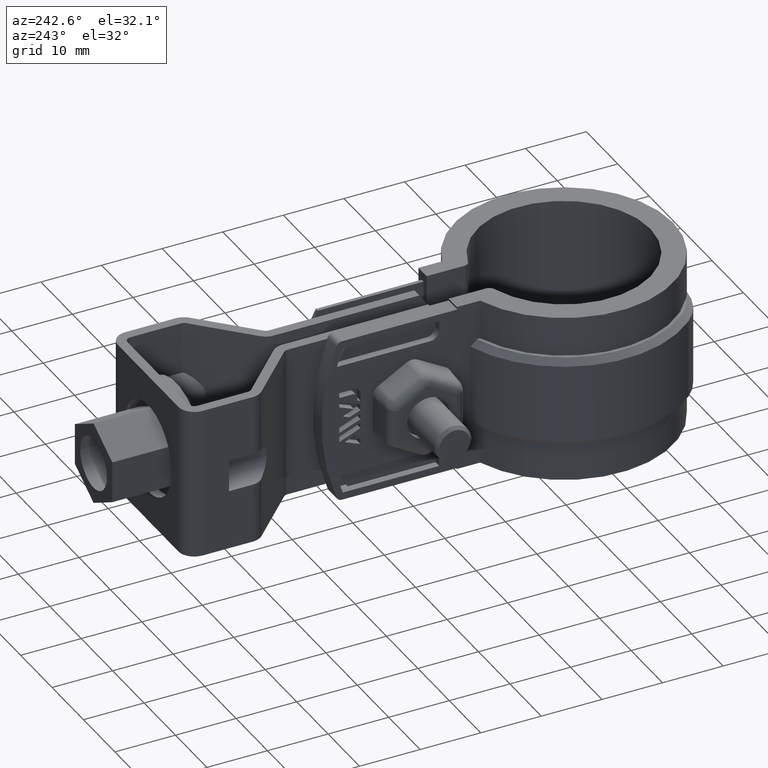
[diagram: clean part render]
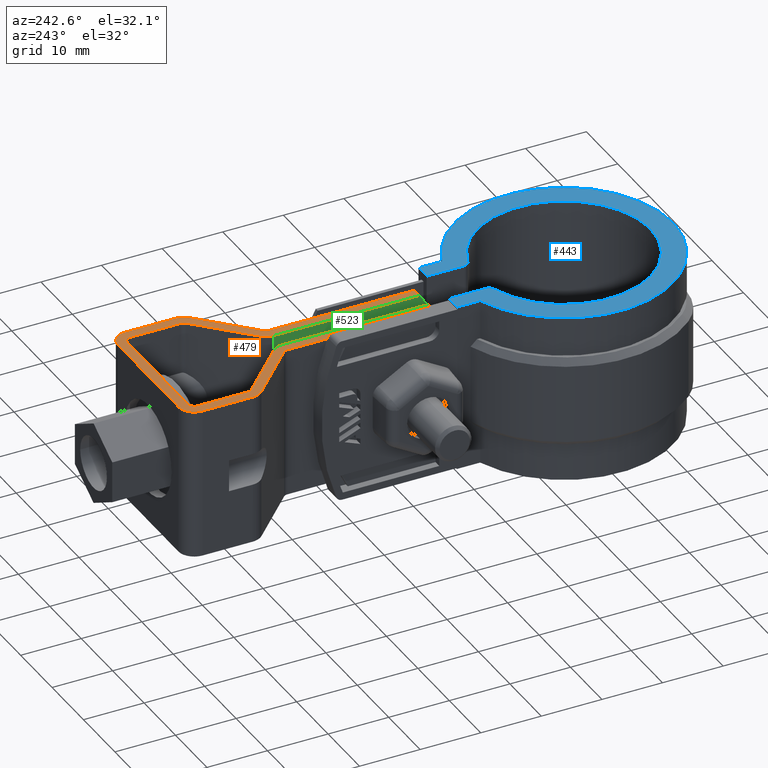
[diagram: same view with three faces highlighted in distinct colors, each labeled with its STEP entity id]
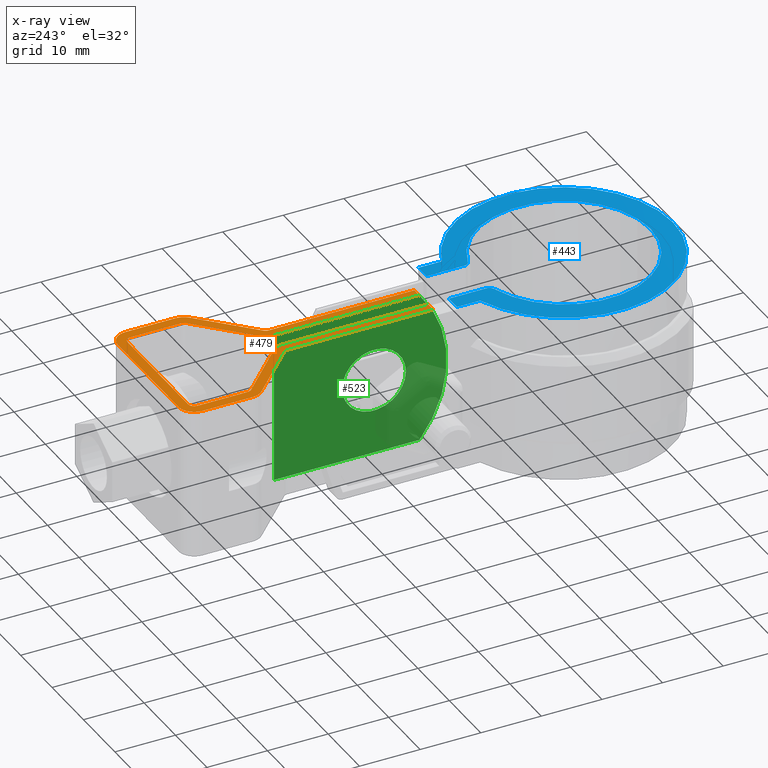
[diagram: x-ray of the same camera — body ghosted, the three highlighted faces saturated]
A machine part, auxiliary view with three faces highlighted in distinct colors.
The next image is the same camera in x-ray (body ghosted, the three faces saturated) — at least one of them is partly hidden behind the body in this view.
Their STEP definitions:

[orange] entity #479 — the highlighted planar face has unit normal (0, 0, -1).
#479 = ADVANCED_FACE( '', ( #929 ), #930, .F. );
#929 = FACE_OUTER_BOUND( '', #2066, .T. );
#930 = PLANE( '', #2067 );
#2066 = EDGE_LOOP( '', ( #4711, #4712, #4713, #4714, #4715, #4716, #4717, #4718, #4719, #4720, #4721, #4722, #4723, #4724, #4725, #4726, #4727, #4728, #4729, #4730, #4731, #4732, #4733, #4734, #4735, #4736, #4737, #4738 ) );
#2067 = AXIS2_PLACEMENT_3D( '', #4739, #4740, #4741 );
#4711 = ORIENTED_EDGE( '', *, *, #6796, .T. );
#4712 = ORIENTED_EDGE( '', *, *, #6797, .T. );
#4713 = ORIENTED_EDGE( '', *, *, #6798, .F. );
#4714 = ORIENTED_EDGE( '', *, *, #6799, .F. );
#4715 = ORIENTED_EDGE( '', *, *, #6800, .F. );
#4716 = ORIENTED_EDGE( '', *, *, #6801, .F. );
#4717 = ORIENTED_EDGE( '', *, *, #6802, .F. );
#4718 = ORIENTED_EDGE( '', *, *, #6803, .T. );
#4719 = ORIENTED_EDGE( '', *, *, #6804, .T. );
#4720 = ORIENTED_EDGE( '', *, *, #6805, .T. );
#4721 = ORIENTED_EDGE( '', *, *, #6806, .T. );
#4722 = ORIENTED_EDGE( '', *, *, #6807, .F. );
#4723 = ORIENTED_EDGE( '', *, *, #6808, .F. );
#4724 = ORIENTED_EDGE( '', *, *, #6809, .T. );
#4725 = ORIENTED_EDGE( '', *, *, #6810, .F. );
#4726 = ORIENTED_EDGE( '', *, *, #6811, .F. );
#4727 = ORIENTED_EDGE( '', *, *, #6812, .T. );
#4728 = ORIENTED_EDGE( '', *, *, #6813, .T. );
#4729 = ORIENTED_EDGE( '', *, *, #6814, .T. );
#4730 = ORIENTED_EDGE( '', *, *, #6815, .T. );
#4731 = ORIENTED_EDGE( '', *, *, #6816, .F. );
#4732 = ORIENTED_EDGE( '', *, *, #6817, .F. );
#4733 = ORIENTED_EDGE( '', *, *, #6818, .F. );
#4734 = ORIENTED_EDGE( '', *, *, #6819, .F. );
#4735 = ORIENTED_EDGE( '', *, *, #6820, .F. );
#4736 = ORIENTED_EDGE( '', *, *, #6821, .T. );
#4737 = ORIENTED_EDGE( '', *, *, #6822, .T. );
#4738 = ORIENTED_EDGE( '', *, *, #6823, .F. );
#4739 = CARTESIAN_POINT( '', ( -9.64999988717899, 66.0019465841352, 1.77277498236705E-008 ) );
#4740 = DIRECTION( '', ( 3.82133362428794E-011, 1.31468003150562E-010, -1.00000000000000 ) );
#4741 = DIRECTION( '', ( 7.94778667583653E-010, 1.00000000000000, 1.31468003180933E-010 ) );
#6796 = EDGE_CURVE( '', #7933, #7934, #7935, .T. );
#6797 = EDGE_CURVE( '', #7934, #7936, #7937, .F. );
#6798 = EDGE_CURVE( '', #7938, #7936, #7939, .T. );
#6799 = EDGE_CURVE( '', #7940, #7938, #7941, .T. );
#6800 = EDGE_CURVE( '', #7942, #7940, #7943, .T. );
#6801 = EDGE_CURVE( '', #7944, #7942, #7945, .T. );
#6802 = EDGE_CURVE( '', #7946, #7944, #7947, .T. );
#6803 = EDGE_CURVE( '', #7946, #7948, #7949, .T. );
#6804 = EDGE_CURVE( '', #7948, #7950, #7951, .T. );
#6805 = EDGE_CURVE( '', #7950, #7952, #7953, .T. );
#6806 = EDGE_CURVE( '', #7952, #7954, #7955, .T. );
#6807 = EDGE_CURVE( '', #7956, #7954, #7957, .F. );
#6808 = EDGE_CURVE( '', #7958, #7956, #7959, .T. );
#6809 = EDGE_CURVE( '', #7958, #7960, #7961, .F. );
#6810 = EDGE_CURVE( '', #7962, #7960, #7963, .T. );
#6811 = EDGE_CURVE( '', #7964, #7962, #7965, .T. );
#6812 = EDGE_CURVE( '', #7964, #7966, #7967, .T. );
#6813 = EDGE_CURVE( '', #7966, #7968, #7969, .T. );
#6814 = EDGE_CURVE( '', #7968, #7970, #7971, .T. );
#6815 = EDGE_CURVE( '', #7970, #7972, #7973, .T. );
#6816 = EDGE_CURVE( '', #7974, #7972, #7975, .T. );
#6817 = EDGE_CURVE( '', #7976, #7974, #7977, .T. );
#6818 = EDGE_CURVE( '', #7978, #7976, #7979, .T. );
#6819 = EDGE_CURVE( '', #7980, #7978, #7981, .T. );
#6820 = EDGE_CURVE( '', #7982, #7980, #7983, .T. );
#6821 = EDGE_CURVE( '', #7982, #7984, #7985, .T. );
#6822 = EDGE_CURVE( '', #7984, #7986, #7987, .T. );
#6823 = EDGE_CURVE( '', #7933, #7986, #7988, .F. );
#7933 = VERTEX_POINT( '', #10969 );
#7934 = VERTEX_POINT( '', #10970 );
#7935 = LINE( '', #10971, #10972 );
#7936 = VERTEX_POINT( '', #10973 );
#7937 = CIRCLE( '', #10974, 2.60000000000000 );
#7938 = VERTEX_POINT( '', #10975 );
#7939 = LINE( '', #10976, #10977 );
#7940 = VERTEX_POINT( '', #10978 );
#7941 = CIRCLE( '', #10979, 1.00000000000000 );
#7942 = VERTEX_POINT( '', #10980 );
#7943 = LINE( '', #10981, #10982 );
#7944 = VERTEX_POINT( '', #10983 );
#7945 = CIRCLE( '', #10984, 1.00000000000000 );
#7946 = VERTEX_POINT( '', #10985 );
#7947 = LINE( '', #10986, #10987 );
#7948 = VERTEX_POINT( '', #10988 );
#7949 = CIRCLE( '', #10989, 1.00000000000000 );
#7950 = VERTEX_POINT( '', #10990 );
#7951 = LINE( '', #10991, #10992 );
#7952 = VERTEX_POINT( '', #10993 );
#7953 = CIRCLE( '', #10994, 0.999999999999999 );
#7954 = VERTEX_POINT( '', #10995 );
#7955 = LINE( '', #10996, #10997 );
#7956 = VERTEX_POINT( '', #10998 );
#7957 = CIRCLE( '', #10999, 2.59999999999999 );
#7958 = VERTEX_POINT( '', #11000 );
#7959 = LINE( '', #11001, #11002 );
#7960 = VERTEX_POINT( '', #11003 );
#7961 = LINE( '', #11004, #11005 );
#7962 = VERTEX_POINT( '', #11006 );
#7963 = LINE( '', #11007, #11008 );
#7964 = VERTEX_POINT( '', #11009 );
#7965 = CIRCLE( '', #11010, 0.999999999999998 );
#7966 = VERTEX_POINT( '', #11011 );
#7967 = LINE( '', #11012, #11013 );
#7968 = VERTEX_POINT( '', #11014 );
#7969 = CIRCLE( '', #11015, 2.59999999999999 );
#7970 = VERTEX_POINT( '', #11016 );
#7971 = LINE( '', #11017, #11018 );
#7972 = VERTEX_POINT( '', #11019 );
#7973 = CIRCLE( '', #11020, 2.59999999999999 );
#7974 = VERTEX_POINT( '', #11021 );
#7975 = LINE( '', #11022, #11023 );
#7976 = VERTEX_POINT( '', #11024 );
#7977 = CIRCLE( '', #11025, 2.59999999999999 );
#7978 = VERTEX_POINT( '', #11026 );
#7979 = LINE( '', #11027, #11028 );
#7980 = VERTEX_POINT( '', #11029 );
#7981 = CIRCLE( '', #11030, 2.59999999999999 );
#7982 = VERTEX_POINT( '', #11031 );
#7983 = LINE( '', #11032, #11033 );
#7984 = VERTEX_POINT( '', #11034 );
#7985 = CIRCLE( '', #11035, 1.00000000000000 );
#7986 = VERTEX_POINT( '', #11036 );
#7987 = LINE( '', #11037, #11038 );
#7988 = LINE( '', #11039, #11040 );
#10969 = CARTESIAN_POINT( '', ( -1.39999992127499, 23.1019466106664, 1.24030230530536E-008 ) );
#10970 = CARTESIAN_POINT( '', ( -1.39999990215727, 47.1560929518745, 1.55653684386081E-008 ) );
#10971 = CARTESIAN_POINT( '', ( -1.39999992485149, 18.6019465775784, 1.18114129588065E-008 ) );
#10972 = VECTOR( '', #12849, 1000.00000000000 );
#10973 = CARTESIAN_POINT( '', ( -2.18435792829886, 49.0171260602460, 1.57800716937828E-008 ) );
#10974 = AXIS2_PLACEMENT_3D( '', #12850, #12851, #12852 );
#10975 = CARTESIAN_POINT( '', ( -10.3483237298784, 56.9819703890617, 1.65152336251140E-008 ) );
#10976 = CARTESIAN_POINT( '', ( -10.3483237298784, 56.9819703890617, 1.65152336251140E-008 ) );
#10977 = VECTOR( '', #12853, 1000.00000000000 );
#10978 = CARTESIAN_POINT( '', ( -10.6499998937790, 57.6977523538200, 1.65978064625705E-008 ) );
#10979 = AXIS2_PLACEMENT_3D( '', #12854, #12855, #12856 );
#10980 = CARTESIAN_POINT( '', ( -10.6499998871790, 66.0019465849300, 1.76895442738356E-008 ) );
#10981 = CARTESIAN_POINT( '', ( -10.6499998871790, 66.0019465849300, 1.76895442738356E-008 ) );
#10982 = VECTOR( '', #12857, 1000.00000000000 );
#10983 = CARTESIAN_POINT( '', ( -9.64999988638421, 67.0019465841352, 1.78592141075740E-008 ) );
#10984 = AXIS2_PLACEMENT_3D( '', #12858, #12859, #12860 );
#10985 = CARTESIAN_POINT( '', ( 9.65000011361578, 67.0019465687963, 1.85967630184081E-008 ) );
#10986 = CARTESIAN_POINT( '', ( 9.65000011361580, 67.0019465687959, 1.85967352628325E-008 ) );
#10987 = VECTOR( '', #12861, 1000.00000000000 );
#10988 = CARTESIAN_POINT( '', ( 10.6500001128210, 66.0019465680015, 1.85035042843396E-008 ) );
#10989 = AXIS2_PLACEMENT_3D( '', #12862, #12863, #12864 );
#10990 = CARTESIAN_POINT( '', ( 10.6500001062210, 57.6977523368915, 1.74117664730744E-008 ) );
#10991 = CARTESIAN_POINT( '', ( 10.6500001128210, 66.0019465680015, 1.85035042843396E-008 ) );
#10992 = VECTOR( '', #12865, 1000.00000000000 );
#10993 = CARTESIAN_POINT( '', ( 10.3483239411826, 56.9819703726128, 1.73061426300691E-008 ) );
#10994 = AXIS2_PLACEMENT_3D( '', #12866, #12867, #12868 );
#10995 = CARTESIAN_POINT( '', ( 2.18435812694254, 49.0171260567741, 1.59470492366864E-008 ) );
#10996 = CARTESIAN_POINT( '', ( 10.3483239411826, 56.9819703726128, 1.73061426300691E-008 ) );
#10997 = VECTOR( '', #12869, 1000.00000000000 );
#10998 = CARTESIAN_POINT( '', ( 1.40000009784273, 47.1560929496494, 1.56723939381820E-008 ) );
#10999 = AXIS2_PLACEMENT_3D( '', #12870, #12871, #12872 );
#11000 = CARTESIAN_POINT( '', ( 1.40000007872500, 23.1019466084413, 1.25100485526275E-008 ) );
#11001 = CARTESIAN_POINT( '', ( 1.40000007514850, 18.6019465753533, 1.19184384583804E-008 ) );
#11002 = VECTOR( '', #12873, 1000.00000000000 );
#11003 = CARTESIAN_POINT( '', ( 3.00000007872502, 23.1019466120612, 1.84844917150429E-008 ) );
#11004 = CARTESIAN_POINT( '', ( 38.4737109353208, 23.1019465789759, 1.39267486432004E-008 ) );
#11005 = VECTOR( '', #12874, 999.999999999998 );
#11006 = CARTESIAN_POINT( '', ( 3.00000009784272, 47.1560929786018, 1.57335394712632E-008 ) );
#11007 = CARTESIAN_POINT( '', ( 3.00000009817769, 47.5775567474919, 1.57889396001920E-008 ) );
#11008 = VECTOR( '', #12875, 1000.00000000000 );
#11009 = CARTESIAN_POINT( '', ( 3.30167626288110, 47.8718749428806, 1.58391771920563E-008 ) );
#11010 = AXIS2_PLACEMENT_3D( '', #12876, #12877, #12878 );
#11011 = CARTESIAN_POINT( '', ( 11.4656420771212, 55.8367192587193, 1.71982705854390E-008 ) );
#11012 = CARTESIAN_POINT( '', ( 3.90167626334635, 48.4572407689933, 1.59390695086969E-008 ) );
#11013 = VECTOR( '', #12879, 1000.00000000000 );
#11014 = CARTESIAN_POINT( '', ( 12.2500001062210, 57.6977523658440, 1.74729120061556E-008 ) );
#11015 = AXIS2_PLACEMENT_3D( '', #12880, #12881, #12882 );
#11016 = CARTESIAN_POINT( '', ( 12.2500001128210, 66.0019465667299, 1.85646498174208E-008 ) );
#11017 = CARTESIAN_POINT( '', ( 12.2500001062210, 57.6977523658440, 1.74729120061556E-008 ) );
#11018 = VECTOR( '', #12883, 1000.00000000000 );
#11019 = CARTESIAN_POINT( '', ( 9.65000011488743, 68.6019465687963, 1.88071086482111E-008 ) );
#11020 = AXIS2_PLACEMENT_3D( '', #12884, #12885, #12886 );
#11021 = CARTESIAN_POINT( '', ( -9.64999988511256, 68.6019465841352, 1.80695736151648E-008 ) );
#11022 = CARTESIAN_POINT( '', ( -9.64999988511256, 68.6019465841352, 1.80695736151648E-008 ) );
#11023 = VECTOR( '', #12887, 1000.00000000000 );
#11024 = CARTESIAN_POINT( '', ( -12.2499998871790, 66.0019465862016, 1.76283987407544E-008 ) );
#11025 = AXIS2_PLACEMENT_3D( '', #12888, #12889, #12890 );
#11026 = CARTESIAN_POINT( '', ( -12.2499998937790, 57.6977523853158, 1.65366609294892E-008 ) );
#11027 = CARTESIAN_POINT( '', ( -12.2499998937790, 57.6977523853158, 1.65366609294892E-008 ) );
#11028 = VECTOR( '', #12891, 1000.00000000000 );
#11029 = CARTESIAN_POINT( '', ( -11.4656418676374, 55.8367192769443, 1.63219715521024E-008 ) );
#11030 = AXIS2_PLACEMENT_3D( '', #12892, #12893, #12894 );
#11031 = CARTESIAN_POINT( '', ( -3.30167606605787, 47.8718749481285, 1.55868234985590E-008 ) );
#11032 = CARTESIAN_POINT( '', ( -3.90167606559264, 48.4572407751950, 1.56408497264948E-008 ) );
#11033 = VECTOR( '', #12895, 1000.00000000000 );
#11034 = CARTESIAN_POINT( '', ( -2.99999990215726, 47.1560929833702, 1.55042229055269E-008 ) );
#11035 = AXIS2_PLACEMENT_3D( '', #12896, #12897, #12898 );
#11036 = CARTESIAN_POINT( '', ( -2.99999992127501, 23.1019466168296, 1.82551890270943E-008 ) );
#11037 = CARTESIAN_POINT( '', ( -2.99999990182229, 47.5775567522603, 1.55596369122435E-008 ) );
#11038 = VECTOR( '', #12899, 1000.00000000000 );
#11039 = CARTESIAN_POINT( '', ( -38.4737107778709, 23.1019466401318, 1.09863090846929E-008 ) );
#11040 = VECTOR( '', #12900, 1000.00000000000 );
#12849 = DIRECTION( '', ( 7.94778556561351E-010, 1.00000000000000, 1.31468003180933E-010 ) );
#12850 = CARTESIAN_POINT( '', ( -3.99999990215726, 47.1560929539409, 1.54660312334798E-008 ) );
#12851 = DIRECTION( '', ( 3.82133362428794E-011, 1.31468003150562E-010, -1.00000000000000 ) );
#12852 = DIRECTION( '', ( -1.00000000000000, 7.94778667588677E-010, -3.82133361383914E-011 ) );
#12853 = DIRECTION( '', ( 0.715781963963492, -0.698323836099389, -6.44548234189015E-011 ) );
#12854 = CARTESIAN_POINT( '', ( -9.64999989377899, 57.6977523530252, 1.66360120124054E-008 ) );
#12855 = DIRECTION( '', ( -3.82133362428794E-011, -1.31468003150562E-010, 1.00000000000000 ) );
#12856 = DIRECTION( '', ( -1.00000000000000, 7.94778667588677E-010, -3.82133361383915E-011 ) );
#12857 = DIRECTION( '', ( -7.94778667583653E-010, -1.00000000000000, -1.31468003180933E-010 ) );
#12858 = CARTESIAN_POINT( '', ( -9.64999988717899, 66.0019465841352, 1.77277498236705E-008 ) );
#12859 = DIRECTION( '', ( -3.82133362428794E-011, -1.31468003150562E-010, 1.00000000000000 ) );
#12860 = DIRECTION( '', ( 7.94778667583653E-010, 1.00000000000000, 1.31468003180933E-010 ) );
#12861 = DIRECTION( '', ( -1.00000000000000, 7.94778667588677E-010, -3.82133361383914E-011 ) );
#12862 = CARTESIAN_POINT( '', ( 9.65000011282100, 66.0019465687963, 1.84652987345046E-008 ) );
#12863 = DIRECTION( '', ( 3.82133362428794E-011, 1.31468003150562E-010, -1.00000000000000 ) );
#12864 = DIRECTION( '', ( 7.94778790044288E-010, 1.00000000000000, 1.31468003180933E-010 ) );
#12865 = DIRECTION( '', ( -7.94778790044288E-010, -1.00000000000000, -1.31468003180933E-010 ) );
#12866 = CARTESIAN_POINT( '', ( 9.65000010622100, 57.6977523376863, 1.73735609232395E-008 ) );
#12867 = DIRECTION( '', ( 3.82133362428794E-011, 1.31468003150562E-010, -1.00000000000000 ) );
#12868 = DIRECTION( '', ( 1.00000000000000, -7.94778790049312E-010, 3.82133361383914E-011 ) );
#12869 = DIRECTION( '', ( -0.715781965073516, -0.698323834961614, -1.19159657042789E-010 ) );
#12870 = CARTESIAN_POINT( '', ( 4.00000009784272, 47.1560929475830, 1.57717588988859E-008 ) );
#12871 = DIRECTION( '', ( -3.82133362428794E-011, -1.31468003150562E-010, 1.00000000000000 ) );
#12872 = DIRECTION( '', ( 1.00000000000000, -7.94778790049312E-010, 3.82133361383914E-011 ) );
#12873 = DIRECTION( '', ( 7.94778901066591E-010, 1.00000000000000, 1.31468003180933E-010 ) );
#12874 = DIRECTION( '', ( -1.00000000000000, 7.94778790049312E-010, -3.82133361383914E-011 ) );
#12875 = DIRECTION( '', ( -7.94778901066591E-010, -1.00000000000000, -1.31468003180933E-010 ) );
#12876 = CARTESIAN_POINT( '', ( 4.00000009784272, 47.1560929778071, 1.57717588988859E-008 ) );
#12877 = DIRECTION( '', ( -3.82133362428794E-011, -1.31468003150562E-010, 1.00000000000000 ) );
#12878 = DIRECTION( '', ( 1.00000000000000, -7.94778790049312E-010, 3.82133361383914E-011 ) );
#12879 = DIRECTION( '', ( 0.715781965073516, 0.698323834961614, 1.19159657042789E-010 ) );
#12880 = CARTESIAN_POINT( '', ( 9.65000010622100, 57.6977523679104, 1.73735609232395E-008 ) );
#12881 = DIRECTION( '', ( -3.82133362428794E-011, -1.31468003150562E-010, 1.00000000000000 ) );
#12882 = DIRECTION( '', ( 0.698323834961612, -0.715781965073519, -6.74171421275957E-011 ) );
#12883 = DIRECTION( '', ( 7.94778790044288E-010, 1.00000000000000, 1.31468003180933E-010 ) );
#12884 = CARTESIAN_POINT( '', ( 9.65000011282100, 66.0019465687963, 1.84652987345046E-008 ) );
#12885 = DIRECTION( '', ( -3.82133362428794E-011, -1.31468003150562E-010, 1.00000000000000 ) );
#12886 = DIRECTION( '', ( 1.00000000000000, -7.94778790049312E-010, 3.82133361383914E-011 ) );
#12887 = DIRECTION( '', ( 1.00000000000000, -7.94778667588677E-010, 3.82133361383914E-011 ) );
#12888 = CARTESIAN_POINT( '', ( -9.64999988717899, 66.0019465841352, 1.77277498236705E-008 ) );
#12889 = DIRECTION( '', ( 3.82133362428794E-011, 1.31468003150562E-010, -1.00000000000000 ) );
#12890 = DIRECTION( '', ( -1.00000000000000, 7.94778667588677E-010, -3.82133361383914E-011 ) );
#12891 = DIRECTION( '', ( 7.94778667583653E-010, 1.00000000000000, 1.31468003180933E-010 ) );
#12892 = CARTESIAN_POINT( '', ( -9.64999989377899, 57.6977523832493, 1.66360120124054E-008 ) );
#12893 = DIRECTION( '', ( 3.82133362428794E-011, 1.31468003150562E-010, -1.00000000000000 ) );
#12894 = DIRECTION( '', ( -0.698323836099390, -0.715781963963491, -1.20787709048751E-010 ) );
#12895 = DIRECTION( '', ( -0.715781963963492, 0.698323836099389, 6.44548234189015E-011 ) );
#12896 = CARTESIAN_POINT( '', ( -3.99999990215726, 47.1560929841650, 1.54660312334798E-008 ) );
#12897 = DIRECTION( '', ( 3.82133362428794E-011, 1.31468003150562E-010, -1.00000000000000 ) );
#12898 = DIRECTION( '', ( -1.00000000000000, 7.94778667588677E-010, -3.82133361383914E-011 ) );
#12899 = DIRECTION( '', ( -7.94778556561351E-010, -1.00000000000000, -1.31468003180933E-010 ) );
#12900 = DIRECTION( '', ( 1.00000000000000, -7.94778667588677E-010, 3.82133361383914E-011 ) );

[blue] entity #443 — the highlighted planar face has unit normal (0, 0, -1).
#443 = ADVANCED_FACE( '', ( #856 ), #857, .F. );
#856 = FACE_OUTER_BOUND( '', #1993, .T. );
#857 = PLANE( '', #1994 );
#1993 = EDGE_LOOP( '', ( #4423, #4424, #4425, #4426, #4427, #4428, #4429, #4430, #4431, #4432 ) );
#1994 = AXIS2_PLACEMENT_3D( '', #4433, #4434, #4435 );
#4423 = ORIENTED_EDGE( '', *, *, #6613, .F. );
#4424 = ORIENTED_EDGE( '', *, *, #6608, .F. );
#4425 = ORIENTED_EDGE( '', *, *, #6738, .F. );
#4426 = ORIENTED_EDGE( '', *, *, #6739, .F. );
#4427 = ORIENTED_EDGE( '', *, *, #6740, .F. );
#4428 = ORIENTED_EDGE( '', *, *, #6741, .T. );
#4429 = ORIENTED_EDGE( '', *, *, #6742, .T. );
#4430 = ORIENTED_EDGE( '', *, *, #6743, .F. );
#4431 = ORIENTED_EDGE( '', *, *, #6744, .T. );
#4432 = ORIENTED_EDGE( '', *, *, #6745, .T. );
#4433 = CARTESIAN_POINT( '', ( -6.50000000000000, 16.2373058110020, 1.50000000000000 ) );
#4434 = DIRECTION( '', ( 0.000000000000000, 0.000000000000000, -1.00000000000000 ) );
#4435 = DIRECTION( '', ( 0.000000000000000, 1.00000000000000, 0.000000000000000 ) );
#6608 = EDGE_CURVE( '', #7625, #7611, #7627, .T. );
#6613 = EDGE_CURVE( '', #7611, #7636, #7637, .T. );
#6738 = EDGE_CURVE( '', #7846, #7625, #7847, .T. );
#6739 = EDGE_CURVE( '', #7848, #7846, #7849, .T. );
#6740 = EDGE_CURVE( '', #7850, #7848, #7851, .T. );
#6741 = EDGE_CURVE( '', #7850, #7852, #7853, .T. );
#6742 = EDGE_CURVE( '', #7852, #7854, #7855, .F. );
#6743 = EDGE_CURVE( '', #7856, #7854, #7857, .F. );
#6744 = EDGE_CURVE( '', #7856, #7858, #7859, .F. );
#6745 = EDGE_CURVE( '', #7858, #7636, #7860, .T. );
#7611 = VERTEX_POINT( '', #9859 );
#7625 = VERTEX_POINT( '', #9884 );
#7627 = LINE( '', #9887, #9888 );
#7636 = VERTEX_POINT( '', #9901 );
#7637 = LINE( '', #9902, #9903 );
#7846 = VERTEX_POINT( '', #10836 );
#7847 = CIRCLE( '', #10837, 18.0350000000000 );
#7848 = VERTEX_POINT( '', #10838 );
#7849 = LINE( '', #10839, #10840 );
#7850 = VERTEX_POINT( '', #10841 );
#7851 = LINE( '', #10842, #10843 );
#7852 = VERTEX_POINT( '', #10844 );
#7853 = LINE( '', #10845, #10846 );
#7854 = VERTEX_POINT( '', #10847 );
#7855 = CIRCLE( '', #10848, 1.00000000000000 );
#7856 = VERTEX_POINT( '', #10849 );
#7857 = CIRCLE( '', #10850, 14.2900000000000 );
#7858 = VERTEX_POINT( '', #10851 );
#7859 = CIRCLE( '', #10852, 1.00000000000000 );
#7860 = LINE( '', #10853, #10854 );
#9859 = CARTESIAN_POINT( '', ( -6.10000000000001, 20.8219465658193, 1.50000000000000 ) );
#9884 = CARTESIAN_POINT( '', ( -6.10000000000000, 16.9720719124095, 1.50000000000000 ) );
#9887 = CARTESIAN_POINT( '', ( -6.10000000000000, 16.9720719124095, 1.50000000000000 ) );
#9888 = VECTOR( '', #12619, 1000.00000000000 );
#9901 = CARTESIAN_POINT( '', ( -3.50000000000000, 20.8219465658193, 1.50000000000000 ) );
#9902 = CARTESIAN_POINT( '', ( -6.50000000000000, 20.8219465658193, 1.50000000000000 ) );
#9903 = VECTOR( '', #12624, 1000.00000000000 );
#10836 = CARTESIAN_POINT( '', ( 6.10000000000001, 16.9720719124095, 1.50000000000000 ) );
#10837 = AXIS2_PLACEMENT_3D( '', #12749, #12750, #12751 );
#10838 = CARTESIAN_POINT( '', ( 6.10000000000000, 20.8219465658193, 1.50000000000000 ) );
#10839 = CARTESIAN_POINT( '', ( 6.10000000000001, 21.4700000000000, 1.50000000000000 ) );
#10840 = VECTOR( '', #12752, 1000.00000000000 );
#10841 = CARTESIAN_POINT( '', ( 3.50000000000000, 20.8219465658193, 1.50000000000000 ) );
#10842 = CARTESIAN_POINT( '', ( -6.50000000000000, 20.8219465658193, 1.50000000000000 ) );
#10843 = VECTOR( '', #12753, 1000.00000000000 );
#10844 = CARTESIAN_POINT( '', ( 3.50000000000000, 14.6128060275910, 1.50000000000000 ) );
#10845 = CARTESIAN_POINT( '', ( 3.50000000000000, 21.4700000000000, 1.50000000000000 ) );
#10846 = VECTOR( '', #12754, 1000.00000000000 );
#10847 = CARTESIAN_POINT( '', ( 4.20568999345978, 13.6570960192463, 1.50000000000000 ) );
#10848 = AXIS2_PLACEMENT_3D( '', #12755, #12756, #12757 );
#10849 = CARTESIAN_POINT( '', ( -4.20568999345978, 13.6570960192463, 1.50000000000000 ) );
#10850 = AXIS2_PLACEMENT_3D( '', #12758, #12759, #12760 );
#10851 = CARTESIAN_POINT( '', ( -3.50000000000000, 14.6128060275910, 1.50000000000000 ) );
#10852 = AXIS2_PLACEMENT_3D( '', #12761, #12762, #12763 );
#10853 = CARTESIAN_POINT( '', ( -3.50000000000000, 13.8495929543073, 1.50000000000000 ) );
#10854 = VECTOR( '', #12764, 1000.00000000000 );
#12619 = DIRECTION( '', ( 6.07153216591883E-017, 1.00000000000000, 0.000000000000000 ) );
#12624 = DIRECTION( '', ( 1.00000000000000, 0.000000000000000, 0.000000000000000 ) );
#12749 = CARTESIAN_POINT( '', ( 0.000000000000000, 1.38777878078145E-014, 1.50000000000000 ) );
#12750 = DIRECTION( '', ( 0.000000000000000, 0.000000000000000, -1.00000000000000 ) );
#12751 = DIRECTION( '', ( 1.00000000000000, 0.000000000000000, 0.000000000000000 ) );
#12752 = DIRECTION( '', ( -6.07153216591883E-017, -1.00000000000000, 0.000000000000000 ) );
#12753 = DIRECTION( '', ( 1.00000000000000, 0.000000000000000, 0.000000000000000 ) );
#12754 = DIRECTION( '', ( -6.28837260041593E-017, -1.00000000000000, 0.000000000000000 ) );
#12755 = CARTESIAN_POINT( '', ( 4.50000000000000, 14.6128060275910, 1.50000000000000 ) );
#12756 = DIRECTION( '', ( 0.000000000000000, 0.000000000000000, -1.00000000000000 ) );
#12757 = DIRECTION( '', ( -1.00000000000000, 0.000000000000000, 0.000000000000000 ) );
#12758 = CARTESIAN_POINT( '', ( 0.000000000000000, 0.000000000000000, 1.50000000000000 ) );
#12759 = DIRECTION( '', ( 0.000000000000000, 0.000000000000000, -1.00000000000000 ) );
#12760 = DIRECTION( '', ( -1.00000000000000, 0.000000000000000, 0.000000000000000 ) );
#12761 = CARTESIAN_POINT( '', ( -4.50000000000000, 14.6128060275910, 1.50000000000000 ) );
#12762 = DIRECTION( '', ( 0.000000000000000, 0.000000000000000, -1.00000000000000 ) );
#12763 = DIRECTION( '', ( -1.00000000000000, 0.000000000000000, 0.000000000000000 ) );
#12764 = DIRECTION( '', ( 6.28837260041593E-017, 1.00000000000000, 0.000000000000000 ) );

[green] entity #523 — the highlighted planar face has unit normal (-1, 0, -0).
#523 = ADVANCED_FACE( '', ( #1025, #1026 ), #1027, .T. );
#1025 = FACE_BOUND( '', #2162, .T. );
#1026 = FACE_OUTER_BOUND( '', #2163, .T. );
#1027 = PLANE( '', #2164 );
#2162 = EDGE_LOOP( '', ( #5106 ) );
#2163 = EDGE_LOOP( '', ( #5107, #5108, #5109, #5110 ) );
#2164 = AXIS2_PLACEMENT_3D( '', #5111, #5112, #5113 );
#5106 = ORIENTED_EDGE( '', *, *, #6929, .F. );
#5107 = ORIENTED_EDGE( '', *, *, #6922, .F. );
#5108 = ORIENTED_EDGE( '', *, *, #6829, .F. );
#5109 = ORIENTED_EDGE( '', *, *, #6808, .T. );
#5110 = ORIENTED_EDGE( '', *, *, #6928, .F. );
#5111 = CARTESIAN_POINT( '', ( 1.40000007610383, 18.6019465786400, -24.9999999880815 ) );
#5112 = DIRECTION( '', ( -1.00000000000000, 7.94778568004707E-010, -3.82133973687092E-011 ) );
#5113 = DIRECTION( '', ( -7.94778567999683E-010, -1.00000000000000, -1.31468003180933E-010 ) );
#6808 = EDGE_CURVE( '', #7958, #7956, #7959, .T. );
#6829 = EDGE_CURVE( '', #7958, #7995, #7998, .T. );
#6922 = EDGE_CURVE( '', #7995, #8147, #8148, .T. );
#6928 = EDGE_CURVE( '', #8147, #7956, #8154, .T. );
#6929 = EDGE_CURVE( '', #8155, #8155, #8156, .F. );
#7956 = VERTEX_POINT( '', #10998 );
#7958 = VERTEX_POINT( '', #11000 );
#7959 = LINE( '', #11001, #11002 );
#7995 = VERTEX_POINT( '', #11049 );
#7998 = CIRCLE( '', #11053, 19.6111110000000 );
#8147 = VERTEX_POINT( '', #11309 );
#8148 = LINE( '', #11310, #11311 );
#8154 = LINE( '', #11321, #11322 );
#8155 = VERTEX_POINT( '', #11323 );
#8156 = CIRCLE( '', #11324, 5.25000000000002 );
#10998 = CARTESIAN_POINT( '', ( 1.40000009784273, 47.1560929496494, 1.56723939381820E-008 ) );
#11000 = CARTESIAN_POINT( '', ( 1.40000007872500, 23.1019466084413, 1.25100485526275E-008 ) );
#11001 = CARTESIAN_POINT( '', ( 1.40000007514850, 18.6019465753533, 1.19184384583804E-008 ) );
#11002 = VECTOR( '', #12873, 1000.00000000000 );
#11049 = CARTESIAN_POINT( '', ( 1.40000007968034, 23.1019466117281, -24.9999999874899 ) );
#11053 = AXIS2_PLACEMENT_3D( '', #12910, #12911, #12912 );
#11309 = CARTESIAN_POINT( '', ( 1.40000009879807, 47.1560929529361, -24.9999999843276 ) );
#11310 = CARTESIAN_POINT( '', ( 1.40000007610383, 18.6019465786400, -24.9999999880815 ) );
#11311 = VECTOR( '', #13055, 1000.00000000000 );
#11321 = CARTESIAN_POINT( '', ( 1.40000009879806, 47.1560929529361, -24.9999999843276 ) );
#11322 = VECTOR( '', #13063, 1000.00000000000 );
#11323 = CARTESIAN_POINT( '', ( 1.40000008099092, 25.3519465769964, -12.4999999871941 ) );
#11324 = AXIS2_PLACEMENT_3D( '', #13064, #13065, #13066 );
#12873 = DIRECTION( '', ( 7.94778901066591E-010, 1.00000000000000, 1.31468003180933E-010 ) );
#12910 = CARTESIAN_POINT( '', ( 1.40000009121265, 38.2130575769964, -12.4999999855033 ) );
#12911 = DIRECTION( '', ( 1.00000000000000, -7.94778568004707E-010, 3.82133973687092E-011 ) );
#12912 = DIRECTION( '', ( -7.94778567999683E-010, -1.00000000000000, -1.31468003180933E-010 ) );
#13055 = DIRECTION( '', ( 7.94778901066591E-010, 1.00000000000000, 1.31468003180933E-010 ) );
#13063 = DIRECTION( '', ( -3.82133974731971E-011, -1.31468062887455E-010, 1.00000000000000 ) );
#13064 = CARTESIAN_POINT( '', ( 1.40000008516351, 30.6019465769965, -12.4999999865039 ) );
#13065 = DIRECTION( '', ( 1.00000000000000, -7.94778568004707E-010, 3.82133973687092E-011 ) );
#13066 = DIRECTION( '', ( -7.94778567999683E-010, -1.00000000000000, -1.31468003180933E-010 ) );